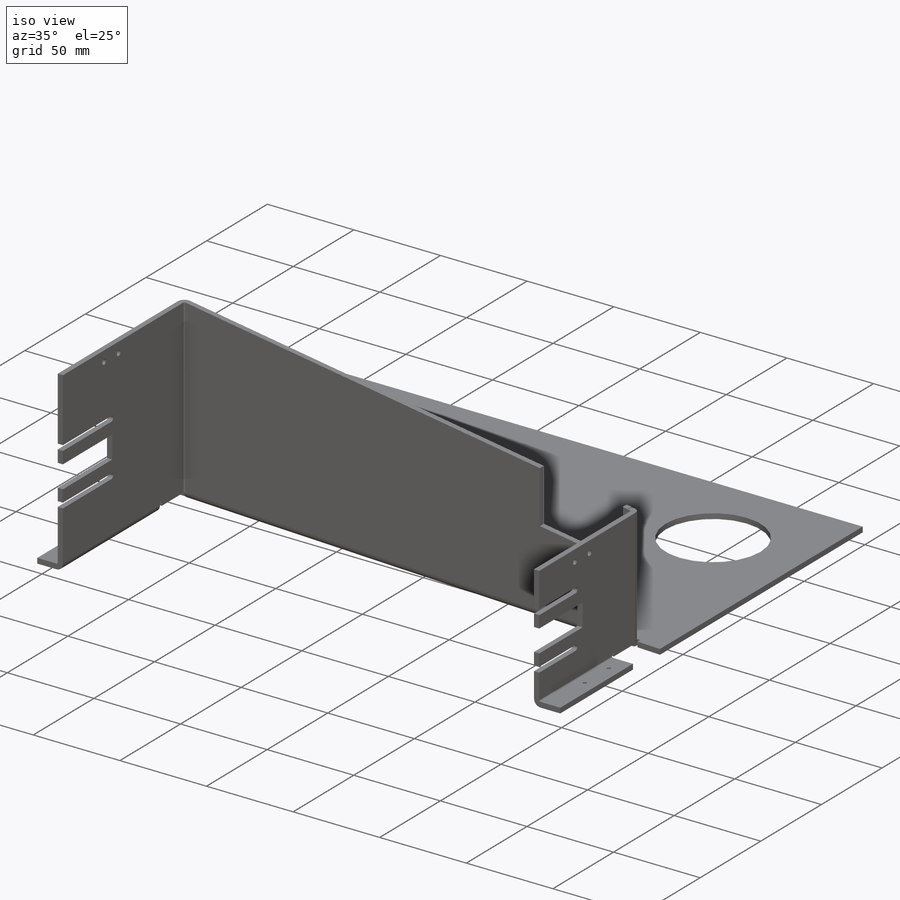
[diagram: iso view]
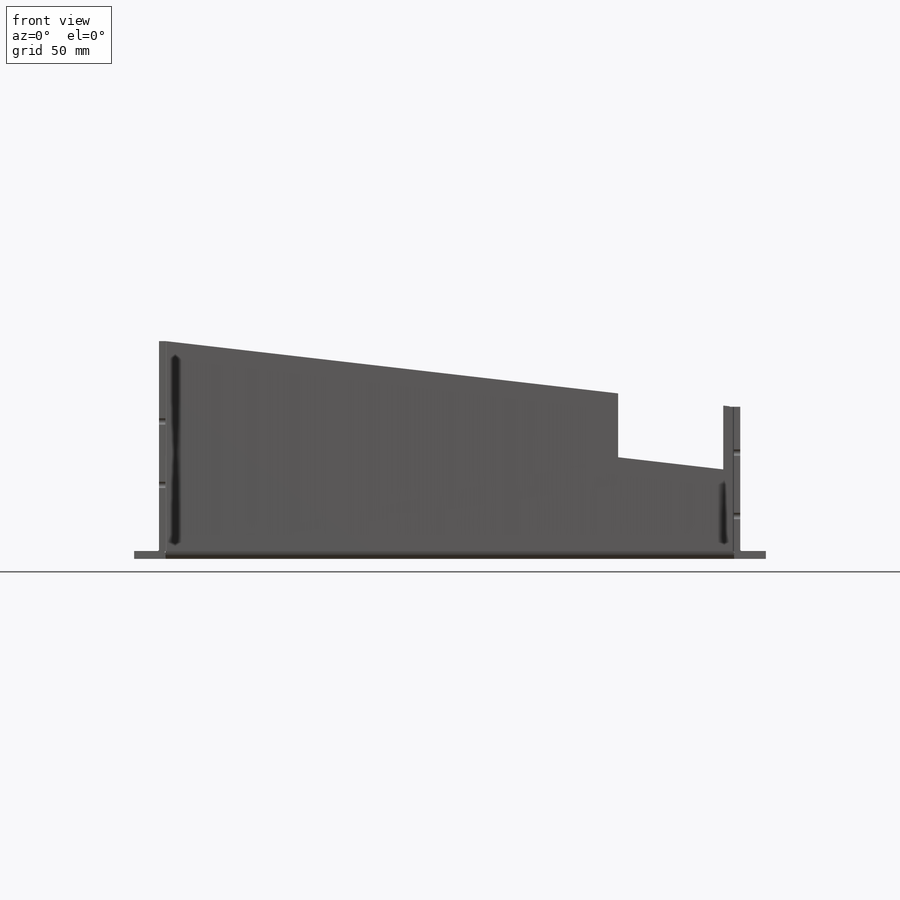
[diagram: front view]
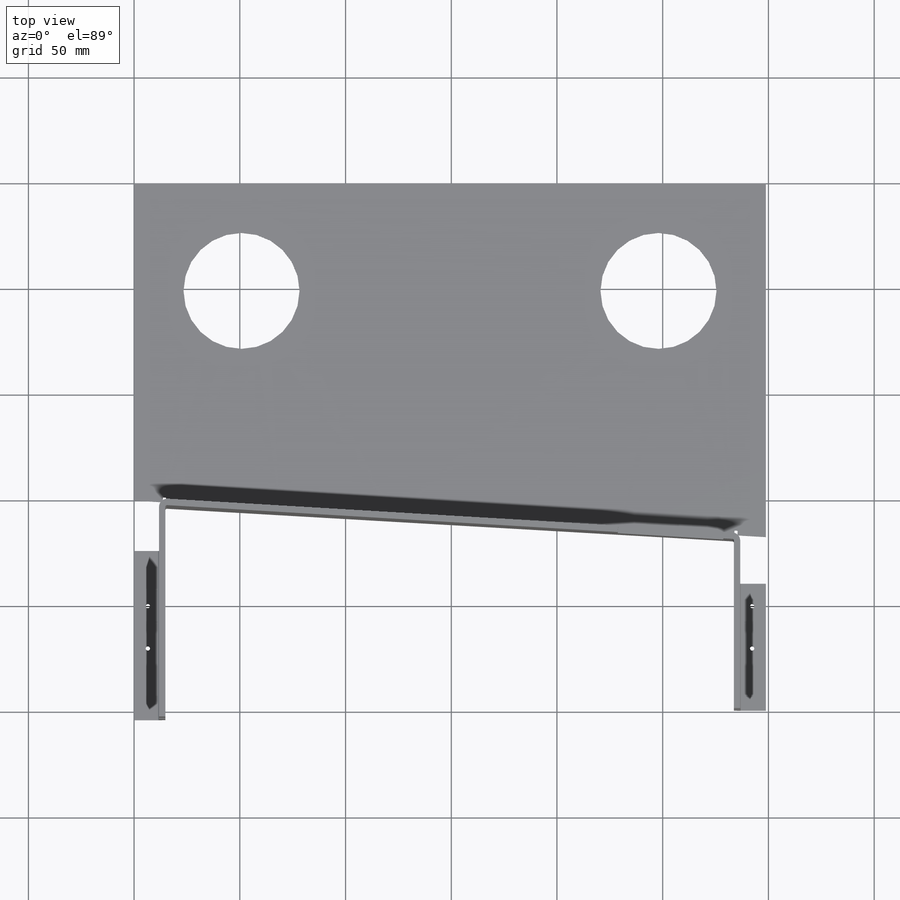
[diagram: top view]
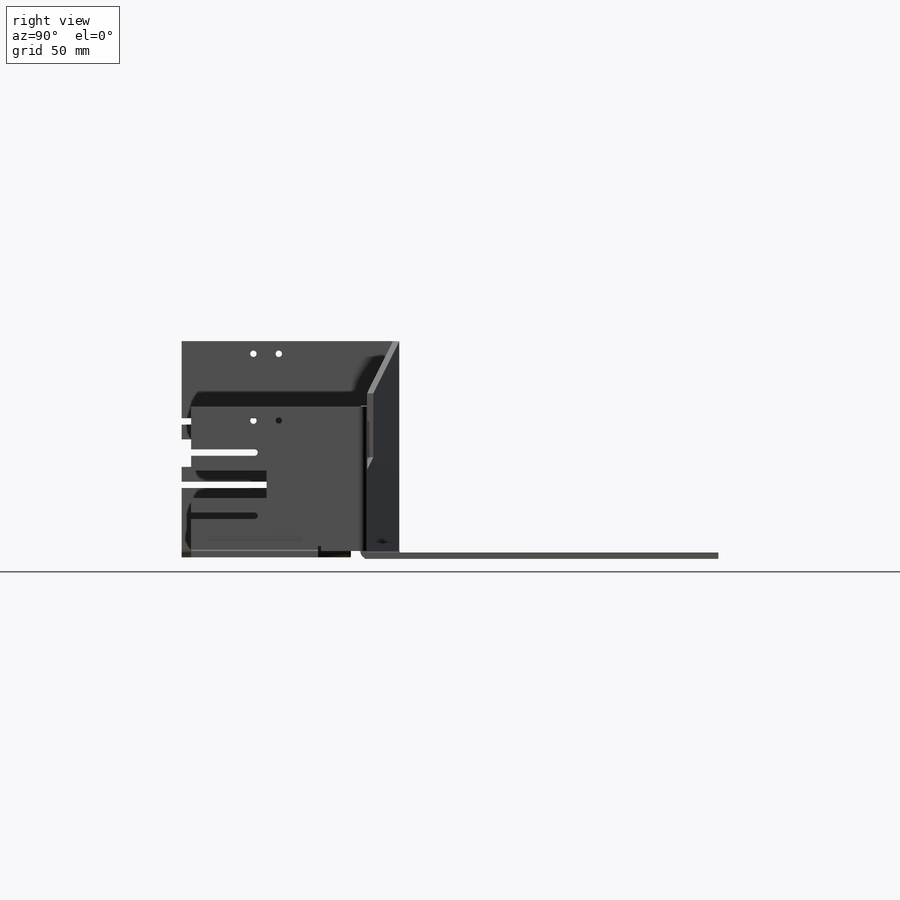
[diagram: right view]
SOLIDWORKS PART (.sldprt)
format: sldprt  version: not decoded by parser v0  size: 592,896 bytes
history: native  units: mm
features: sketch x15, sheet_metal_op x6, cut_extrude x5, thread x4, material x1, plane x1, hole x1 + 5 further entries (+11 scaffold rows collapsed; 1 parser-record rows omitted)
feature tree (50):
  scaffold x11  (default folders/planes/origin — collapsed)
  material  "6061 Alloy"
  sketch  "Sketch2"  dims[c1.D1=298.8mm c1.D2=150.0mm c1.D3=304.8mm c2.D3=~97.476406deg c3.D3=~1628.424754mm]
  sheet_metal_op  "Sheet-Metal1"
  sheet_metal_op  "Base"
  sketch  "Sketch7"  dims[c1.D1=15.0mm c1.D2=15.0mm c1.D3=100.0mm c1.D4=~1455.919733mm c1.D5=50.0mm c1.D6=25.0mm c2.D5=50.0mm c2.D6=5.0mm c2.D7=30.0mm c2.D1=0.7366mm c2.D4=~1570.796327mm c3.D5=6.0 c3.D8=~0.085944deg c3.D9=~0.085944deg c3.D1=0.7366mm c3.D2=~28.64789deg c3.D3=0.0deg c3.D6=10.0mm c3.D7=100.0mm c3.Big Brush End Wall=0.0]
  sketch  "Sketch16"
  sheet_metal_op  "EdgeBend4"  Small Brush End Wall=0
  sketch  "Sketch19"
  sheet_metal_op  "EdgeBend5"
  plane  "Wall Offset"  Offset=20mm
  sketch  "Sketch26"  dims[c1.D1=6.5mm c1.D4=1.5mm c1.D5=1.5mm c1.D2=50.0mm c1.D3=40.0mm c1.D6=15.0mm c1.D7=15.0mm c1.D8=40.0mm c2.D3=64.3mm c2.D1=15.0mm c2.D2=15.0mm c3.D3=50.0mm c3.D6=13.0mm c3.D7=59.3mm]
  cut_extrude  "Big Brush End Slots"  [1 undecoded]
  sketch  "Sketch27"  dims[c1.D1=6.5mm c1.D4=1.5mm c1.D5=1.5mm c1.D2=34.3164mm c1.D3=40.0mm c1.D6=15.0mm c1.D7=15.0mm c1.D8=30.0mm c2.D3=49.3mm c2.D1=35.2971mm c2.D2=15.0mm c3.D3=15.0mm c3.D6=13.0mm c3.D7=44.3mm]
  cut_extrude  "Small Brush End Slots"  Depth=0 Edge-Flange5=0
  sketch  "Sketch32"  dims[D1=80.0mm]
  sheet_metal_op  "EdgeBend6"  Edge-Flange6=0
  sketch  "Sketch35"  dims[D1=60.0mm]
  sheet_metal_op  "EdgeBend7"
  sketch  "Sketch38"  dims[D2=3.0mm D3=3.0mm D1=0.7mm D4=6.0mm D5=6.0mm D6=6.0mm]
  cut_extrude  "Guard Mouting Holes Big End"  [1 undecoded]
  sketch  "Sketch39"  dims[D1=3.0mm D2=3.0mm D3=6.5581mm D4=0.2744mm D5=6.0mm D6=6.0mm]
  cut_extrude  "Guard Mouting Holes Small End"  [1 undecoded]
  sketch  "Sketch41"  dims[D3=54.864mm D6=54.864mm D1=50.8mm D2=50.8mm D4=50.8mm D5=50.8mm]
  cut_extrude  "Motor Holes"  [1 undecoded]
  hole  "M2.5 Tapped Hole1"  Diameter=2.05mm Depth=6.35mm
  sketch  "Sketch45"  dims[D1=6.5mm D2=6.5mm D3=6.5mm D4=6.5mm D5=20.0mm D6=20.0mm D7=200.0mm D8=200.0mm]
  sketch  "Sketch44"  dims[hole-wizard template sketch: 34 standard entries collapsed; hole parameters kept: c5.Tap Drill Dia.=2.05mm c5.Tap Drill Depth=6.35mm c5.Drill Angle=~2059.488517mm]  [1 undecoded]
  thread  "Hole Thread1"  Diameter=3mm  [1 undecoded]
  thread  "Hole Thread2"  Diameter=3mm  [1 undecoded]
  thread  "Hole Thread3"  Diameter=3mm  [1 undecoded]
  thread  "Hole Thread4"  Diameter=3mm  [1 undecoded]
  "Flat-Pattern1"
  sketch  "Bend-Lines1"
  sketch  "Bounding-Box1"
  "Flatten-<EdgeBend5>1"
  "Flatten-<EdgeBend6>1"
  "Flatten-<EdgeBend7>1"
  "Flatten-<EdgeBend8>1"
  parser-record x1  (decoder bookkeeping rows leaked as tree rows — omitted from the tree; the rows remain in map.json)
decode coverage: 19 of 31 modeling features carry decoded parameters; 5 rows unclassified (native names shown)
note: ~ marks probable driven/reference dimensions
note: 8 parameter values undecoded
summary: no parameter record found for 4 features
note: suppression state not decoded; provenance and decode notes live in map.json
note: 1 required parameter value undecoded (feature->parameter linkage not recoverable at this tier; creation-order binding heuristic only, values carry confidence <= 0.55)
